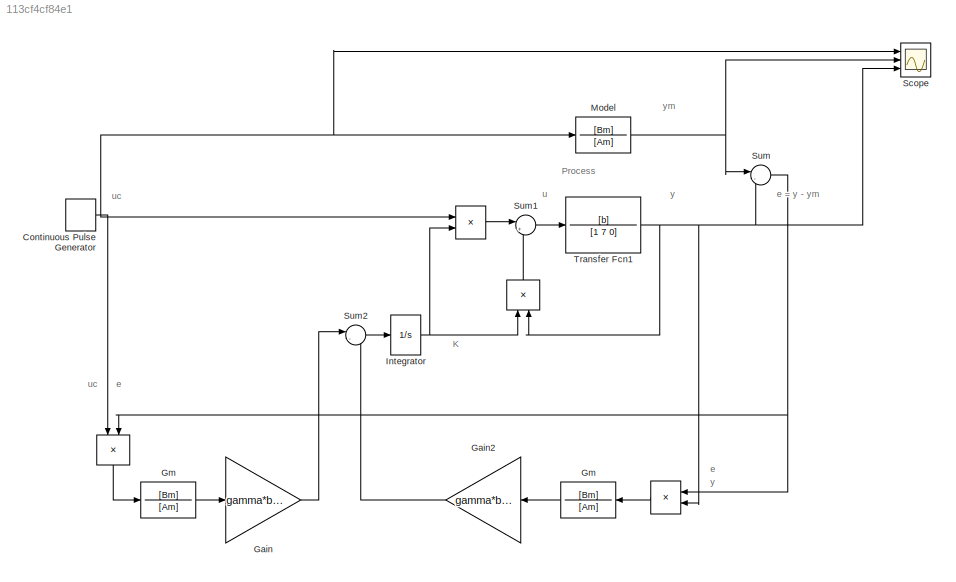
MODEL slx_113cf4cf84e1
KIND model
CONFIG AbsTol = auto
CONFIG EnableMultiTasking = off
CONFIG FixedStep = auto
CONFIG MaxStep = auto
CONFIG MinStep = auto
CONFIG RelTol = 1e-3
CONFIG SampleTimeConstraint = Unconstrained
CONFIG Solver = VariableStepAuto
CONFIG SolverName = VariableStepAuto
CONFIG StartTime = 0.0
CONFIG StopTime = 100
BLOCK [Product]  
  InputSameDT = off
  OutDataTypeStr = Inherit: Inherit via internal rule
  Ports = [2, 1]
  RndMeth = Floor
  SaturateOnIntegerOverflow = off
BLOCK [Product]      
  InputSameDT = off
  OutDataTypeStr = Inherit: Inherit via internal rule
  Ports = [2, 1]
  RndMeth = Floor
  SaturateOnIntegerOverflow = off
BLOCK [DiscretePulseGenerator] Continuous Pulse Generator
  Period = 20
  Ports = [0, 1]
  PulseType = Time based
  PulseWidth = 50
BLOCK [Gain] Gain
  Gain = gamma*b/12
  OutDataTypeStr = Inherit: Inherit via internal rule
  ParamDataTypeStr = Inherit: Inherit via internal rule
  SaturateOnIntegerOverflow = off
BLOCK [Gain] Gain2
  Gain = gamma*b/12
  OutDataTypeStr = Inherit: Inherit via internal rule
  ParamDataTypeStr = Inherit: Inherit via internal rule
  SaturateOnIntegerOverflow = off
BLOCK [TransferFcn] Gm 
  Denominator = [Am]
  Numerator = [Bm]
BLOCK [TransferFcn] Gm  
  Denominator = [Am]
  Numerator = [Bm]
BLOCK [Integrator] Integrator
  Ports = [1, 1]
BLOCK [TransferFcn] Model
  Denominator = [Am]
  Numerator = [Bm]
BLOCK [Scope] Scope
  Floating = off
  NumInputPorts = 3
  Ports = [3]
  ScopeSpecificationString = Simulink.scopes.TimeScopeBlockCfg('CurrentConfiguration', extmgr.ConfigurationSet(extmgr.Configuration('Core','General UI',true),extmgr.Configuration('Core','Source UI',true),extmgr.Configuration('Sources','WiredSimulink',true),extmgr.Configuration('Visuals','Time Domain',true,'SerializedDisplays',{struct('MinYLimReal','-0.025','MaxYLimReal','0.225','YLabelReal','','MinYLimMag','0.00000','MaxYLimM...<+1387ch>
BLOCK [Sum] Sum
  IconShape = round
  InputSameDT = off
  Inputs = |-+
  OutDataTypeStr = Inherit: Inherit via internal rule
  Ports = [2, 1]
  SaturateOnIntegerOverflow = off
BLOCK [Sum] Sum1
  IconShape = round
  InputSameDT = off
  Inputs = |+-
  OutDataTypeStr = Inherit: Inherit via internal rule
  Ports = [2, 1]
  SaturateOnIntegerOverflow = off
BLOCK [Sum] Sum2
  IconShape = round
  InputSameDT = off
  Inputs = |-+
  OutDataTypeStr = Inherit: Inherit via internal rule
  Ports = [2, 1]
  SaturateOnIntegerOverflow = off
BLOCK [TransferFcn] Transfer Fcn1
  Denominator = [1 7 0]
  Numerator = [b]
ANNOTATION (root): K
ANNOTATION (root): Process
ANNOTATION (root): e
ANNOTATION (root): e = y - ym
ANNOTATION (root): u
ANNOTATION (root): uc
ANNOTATION (root): y
ANNOTATION (root): ym
LINE      :1 -> Sum1:1
NET  :1 -> Gm  :1, Gm :1, Sum1:2
NET Continuous Pulse Generator:1 ->      :1,  :1, Model:1, Scope:1
LINE Gain2:1 -> Sum2:2
LINE Gain:1 -> Sum2:1
LINE Gm  :1 -> Gain:1
LINE Gm :1 -> Gain2:1
NET Integrator:1 ->      :2,  :1
NET Model:1 -> Scope:2, Sum:1
LINE Sum1:1 -> Transfer Fcn1:1
LINE Sum2:1 -> Integrator:1
NET Sum:1 ->  :1,  :2
NET Transfer Fcn1:1 ->  :2, Scope:3, Sum:2
note: NET lines group one-source signal fan-out (src -> all destinations, sorted); 1:1 wires keep LINE
